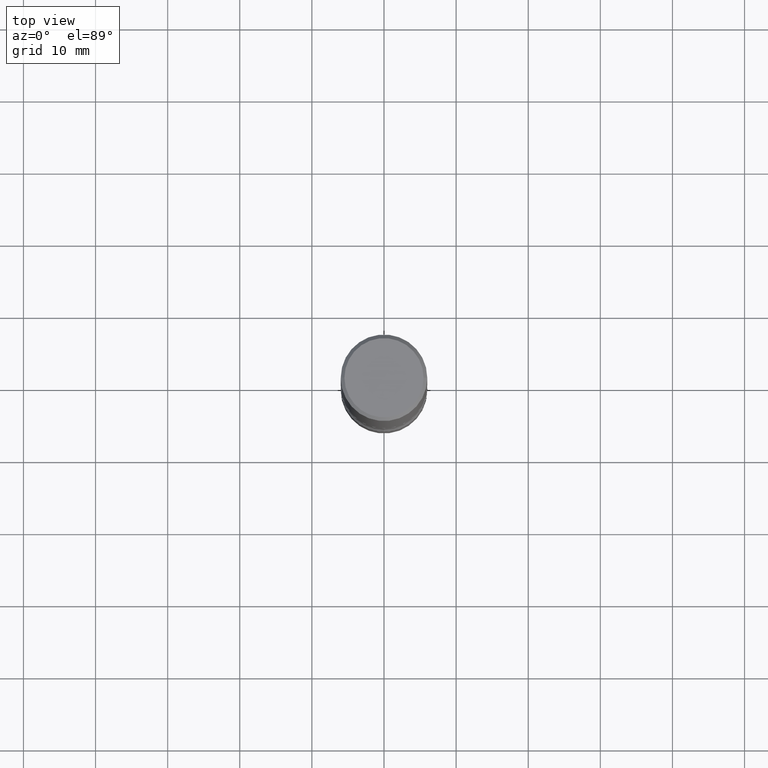
[diagram: clean part render]
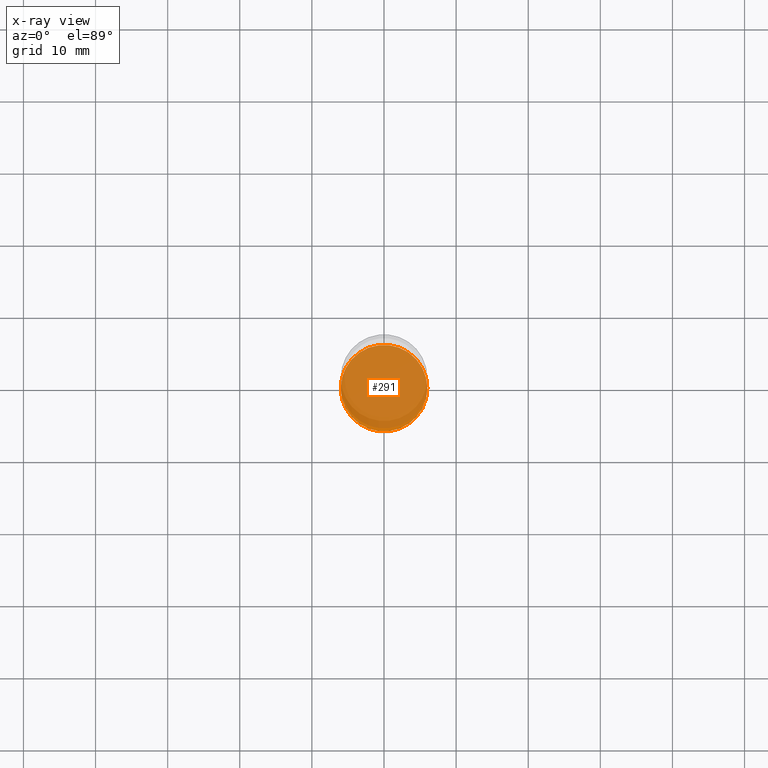
[diagram: x-ray — body ghosted, one internal face saturated and labeled with its STEP entity id]
A machine part, top view, then the same camera in x-ray: the body is ghosted and one INTERNAL B-rep face — a face not visible from any outside direction — is saturated and labeled: STEP entity #291.
In plain terms, the highlighted planar face has unit normal (0, -0, -1).
Its self-contained STEP definition (entity closure, byte-faithful):
#7 = CARTESIAN_POINT ( 'NONE',  ( 8.087409888934865187E-29, -1.154667793568816723E-14, -3.307100000000000151 ) ) ;
#14 = DIRECTION ( 'NONE',  ( 1.000000000000000000, -6.982962677686266711E-15, 0.000000000000000000 ) ) ;
#64 = DIRECTION ( 'NONE',  ( 1.000000000000000000, -6.982962677686266711E-15, 0.000000000000000000 ) ) ;
#78 = CARTESIAN_POINT ( 'NONE',  ( -0.2362000000000002431, -1.093362695030385570E-14, -3.307100000000000151 ) ) ;
#84 = FACE_OUTER_BOUND ( 'NONE', #175, .T. ) ;
#133 = PLANE ( 'NONE',  #386 ) ;
#144 = CIRCLE ( 'NONE', #170, 0.2362000000000002153 ) ;
#161 = CARTESIAN_POINT ( 'NONE',  ( 8.087409888934865187E-29, -1.154667793568816723E-14, -3.307100000000000151 ) ) ;
#170 = AXIS2_PLACEMENT_3D ( 'NONE', #414, #241, #64 ) ;
#175 = EDGE_LOOP ( 'NONE', ( #460, #513 ) ) ;
#194 = CIRCLE ( 'NONE', #335, 0.2362000000000002153 ) ;
#241 = DIRECTION ( 'NONE',  ( -2.445468806185136597E-29, 3.491481338843145583E-15, 1.000000000000000000 ) ) ;
#258 = EDGE_CURVE ( 'NONE', #547, #313, #194, .T. ) ;
#291 = ADVANCED_FACE ( 'NONE', ( #84 ), #133, .F. ) ;
#307 = DIRECTION ( 'NONE',  ( -2.445468806185136597E-29, 3.491481338843145583E-15, 1.000000000000000000 ) ) ;
#311 = CARTESIAN_POINT ( 'NONE',  ( 0.2362000000000002153, -1.319605372015766534E-14, -3.307100000000000151 ) ) ;
#313 = VERTEX_POINT ( 'NONE', #311 ) ;
#335 = AXIS2_PLACEMENT_3D ( 'NONE', #161, #307, #14 ) ;
#385 = DIRECTION ( 'NONE',  ( 2.438088387897960049E-29, -3.491481338843145188E-15, -1.000000000000000000 ) ) ;
#386 = AXIS2_PLACEMENT_3D ( 'NONE', #7, #385, #530 ) ;
#414 = CARTESIAN_POINT ( 'NONE',  ( 8.087409888934865187E-29, -1.154667793568816723E-14, -3.307100000000000151 ) ) ;
#447 = EDGE_CURVE ( 'NONE', #313, #547, #144, .T. ) ;
#460 = ORIENTED_EDGE ( 'NONE', *, *, #447, .T. ) ;
#513 = ORIENTED_EDGE ( 'NONE', *, *, #258, .T. ) ;
#530 = DIRECTION ( 'NONE',  ( -1.000000000000000000, 6.982962677686265922E-15, -4.876176775795935793E-29 ) ) ;
#547 = VERTEX_POINT ( 'NONE', #78 ) ;